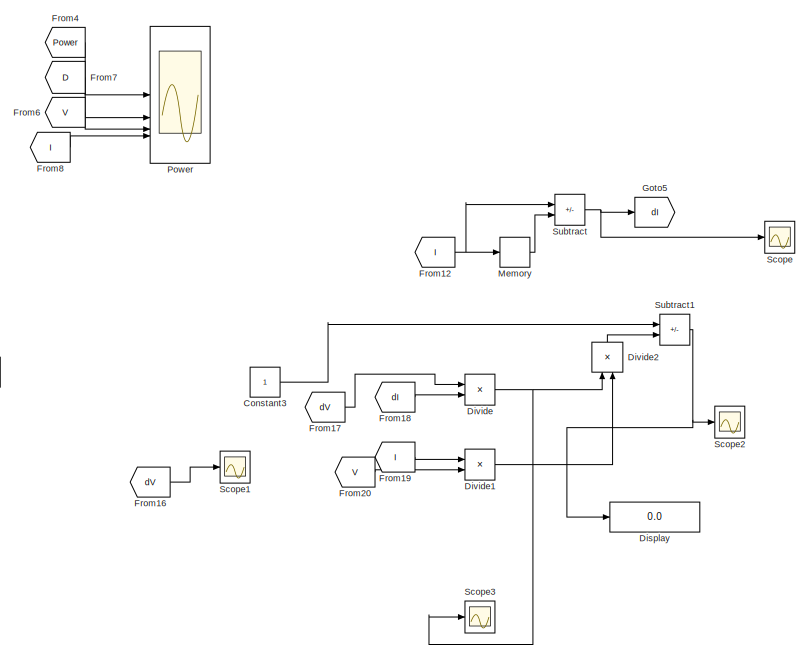
[diagram: root canvas - part 1/5, top right region]
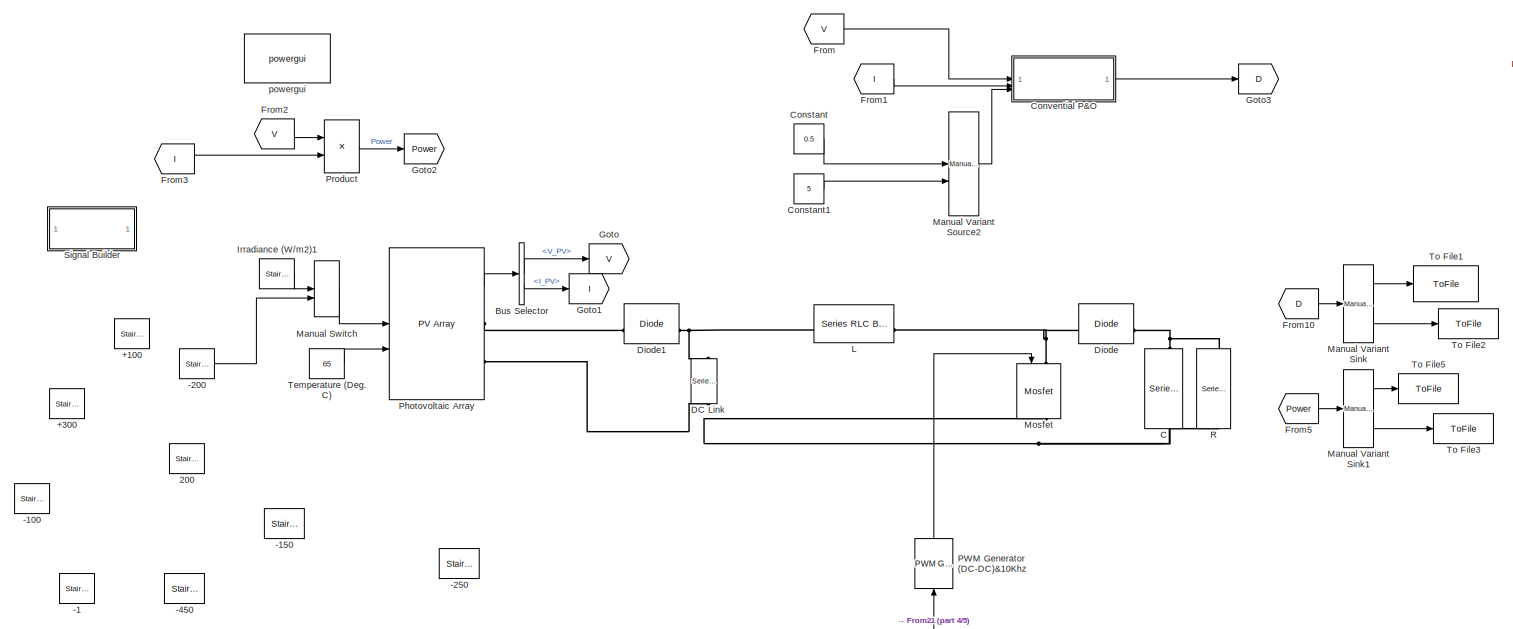
[diagram: root canvas - part 2/5, central region]
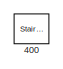
[diagram: root canvas - part 3/5, middle left region]
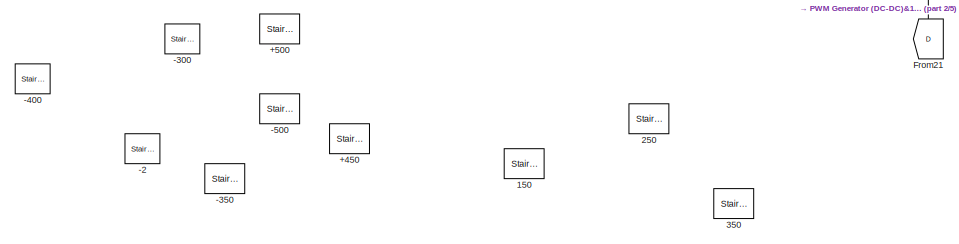
[diagram: root canvas - part 4/5, bottom left region]
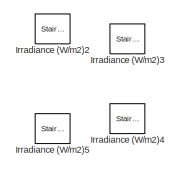
[diagram: root canvas - part 5/5, bottom left region]
MODEL slx_adccf2b5642a
KIND model
CONFIG AbsTol = auto
CONFIG EnableMultiTasking = off
CONFIG FixedStep = auto
CONFIG MaxStep = auto
CONFIG MinStep = auto
CONFIG RelTol = 1e-3
CONFIG SampleTimeConstraint = Unconstrained
CONFIG SolverName = ode23tb
CONFIG StartTime = 0.0
CONFIG StopTime = 1.5
WORKSPACE source: mxarray member
WORKSPACE F: Simulink.Parameter (value not decoded)
BLOCK [Reference] +100  REF=spsStairGeneratorLib/Stair
Generator
  LibrarySourceBlock = sps_lib/Sources/Signal Generator Sources/Stair\nGenerator
  NameLocation = top
  SourceBlock = spsStairGeneratorLib/Stair\nGenerator
  SourceType = Stair Generator
BLOCK [Reference] +300  REF=spsStairGeneratorLib/Stair
Generator
  LibrarySourceBlock = sps_lib/Sources/Signal Generator Sources/Stair\nGenerator
  NameLocation = top
  SourceBlock = spsStairGeneratorLib/Stair\nGenerator
  SourceType = Stair Generator
BLOCK [Reference] +450  REF=spsStairGeneratorLib/Stair
Generator
  LibrarySourceBlock = sps_lib/Sources/Signal Generator Sources/Stair\nGenerator
  NameLocation = top
  SourceBlock = spsStairGeneratorLib/Stair\nGenerator
  SourceType = Stair Generator
BLOCK [Reference] +500  REF=spsStairGeneratorLib/Stair
Generator
  LibrarySourceBlock = sps_lib/Sources/Signal Generator Sources/Stair\nGenerator
  NameLocation = top
  SourceBlock = spsStairGeneratorLib/Stair\nGenerator
  SourceType = Stair Generator
BLOCK [Reference] -1  REF=spsStairGeneratorLib/Stair
Generator
  Commented = on
  LibrarySourceBlock = sps_lib/Sources/Signal Generator Sources/Stair\nGenerator
  NameLocation = top
  SourceBlock = spsStairGeneratorLib/Stair\nGenerator
  SourceType = Stair Generator
BLOCK [Reference] -100  REF=spsStairGeneratorLib/Stair
Generator
  LibrarySourceBlock = sps_lib/Sources/Signal Generator Sources/Stair\nGenerator
  NameLocation = top
  SourceBlock = spsStairGeneratorLib/Stair\nGenerator
  SourceType = Stair Generator
BLOCK [Reference] -150  REF=spsStairGeneratorLib/Stair
Generator
  LibrarySourceBlock = sps_lib/Sources/Signal Generator Sources/Stair\nGenerator
  NameLocation = top
  SourceBlock = spsStairGeneratorLib/Stair\nGenerator
  SourceType = Stair Generator
BLOCK [Reference] -2  REF=spsStairGeneratorLib/Stair
Generator
  Commented = on
  LibrarySourceBlock = sps_lib/Sources/Signal Generator Sources/Stair\nGenerator
  NameLocation = top
  SourceBlock = spsStairGeneratorLib/Stair\nGenerator
  SourceType = Stair Generator
BLOCK [Reference] -200  REF=spsStairGeneratorLib/Stair
Generator
  LibrarySourceBlock = sps_lib/Sources/Signal Generator Sources/Stair\nGenerator
  NameLocation = top
  SourceBlock = spsStairGeneratorLib/Stair\nGenerator
  SourceType = Stair Generator
BLOCK [Reference] -250  REF=spsStairGeneratorLib/Stair
Generator
  LibrarySourceBlock = sps_lib/Sources/Signal Generator Sources/Stair\nGenerator
  NameLocation = top
  SourceBlock = spsStairGeneratorLib/Stair\nGenerator
  SourceType = Stair Generator
BLOCK [Reference] -300  REF=spsStairGeneratorLib/Stair
Generator
  LibrarySourceBlock = sps_lib/Sources/Signal Generator Sources/Stair\nGenerator
  NameLocation = top
  SourceBlock = spsStairGeneratorLib/Stair\nGenerator
  SourceType = Stair Generator
BLOCK [Reference] -350  REF=spsStairGeneratorLib/Stair
Generator
  LibrarySourceBlock = sps_lib/Sources/Signal Generator Sources/Stair\nGenerator
  NameLocation = top
  SourceBlock = spsStairGeneratorLib/Stair\nGenerator
  SourceType = Stair Generator
BLOCK [Reference] -400  REF=spsStairGeneratorLib/Stair
Generator
  LibrarySourceBlock = sps_lib/Sources/Signal Generator Sources/Stair\nGenerator
  NameLocation = top
  SourceBlock = spsStairGeneratorLib/Stair\nGenerator
  SourceType = Stair Generator
BLOCK [Reference] -450  REF=spsStairGeneratorLib/Stair
Generator
  LibrarySourceBlock = sps_lib/Sources/Signal Generator Sources/Stair\nGenerator
  NameLocation = top
  SourceBlock = spsStairGeneratorLib/Stair\nGenerator
  SourceType = Stair Generator
BLOCK [Reference] -500  REF=spsStairGeneratorLib/Stair
Generator
  LibrarySourceBlock = sps_lib/Sources/Signal Generator Sources/Stair\nGenerator
  NameLocation = top
  SourceBlock = spsStairGeneratorLib/Stair\nGenerator
  SourceType = Stair Generator
BLOCK [Reference] 150  REF=spsStairGeneratorLib/Stair
Generator
  LibrarySourceBlock = sps_lib/Sources/Signal Generator Sources/Stair\nGenerator
  NameLocation = top
  SourceBlock = spsStairGeneratorLib/Stair\nGenerator
  SourceType = Stair Generator
BLOCK [Reference] 200  REF=spsStairGeneratorLib/Stair
Generator
  LibrarySourceBlock = sps_lib/Sources/Signal Generator Sources/Stair\nGenerator
  NameLocation = top
  SourceBlock = spsStairGeneratorLib/Stair\nGenerator
  SourceType = Stair Generator
BLOCK [Reference] 250  REF=spsStairGeneratorLib/Stair
Generator
  LibrarySourceBlock = sps_lib/Sources/Signal Generator Sources/Stair\nGenerator
  NameLocation = top
  SourceBlock = spsStairGeneratorLib/Stair\nGenerator
  SourceType = Stair Generator
BLOCK [Reference] 350  REF=spsStairGeneratorLib/Stair
Generator
  LibrarySourceBlock = sps_lib/Sources/Signal Generator Sources/Stair\nGenerator
  NameLocation = top
  SourceBlock = spsStairGeneratorLib/Stair\nGenerator
  SourceType = Stair Generator
BLOCK [Reference] 400  REF=spsStairGeneratorLib/Stair
Generator
  LibrarySourceBlock = sps_lib/Sources/Signal Generator Sources/Stair\nGenerator
  NameLocation = top
  SourceBlock = spsStairGeneratorLib/Stair\nGenerator
  SourceType = Stair Generator
BLOCK [BusSelector] Bus Selector
  OutputSignals = V_PV,I_PV
BLOCK [Reference] C  REF=spsSeriesRLCBranchLib/Series RLC Branch
  LibrarySourceBlock = sps_lib/Passives/Series RLC Branch
  NameLocation = left
  SourceBlock = spsSeriesRLCBranchLib/Series RLC Branch
  SourceType = Series RLC Branch
BLOCK [Constant] Constant
  Value = 0.5
BLOCK [Constant] Constant1
  Value = 5
BLOCK [Constant] Constant3
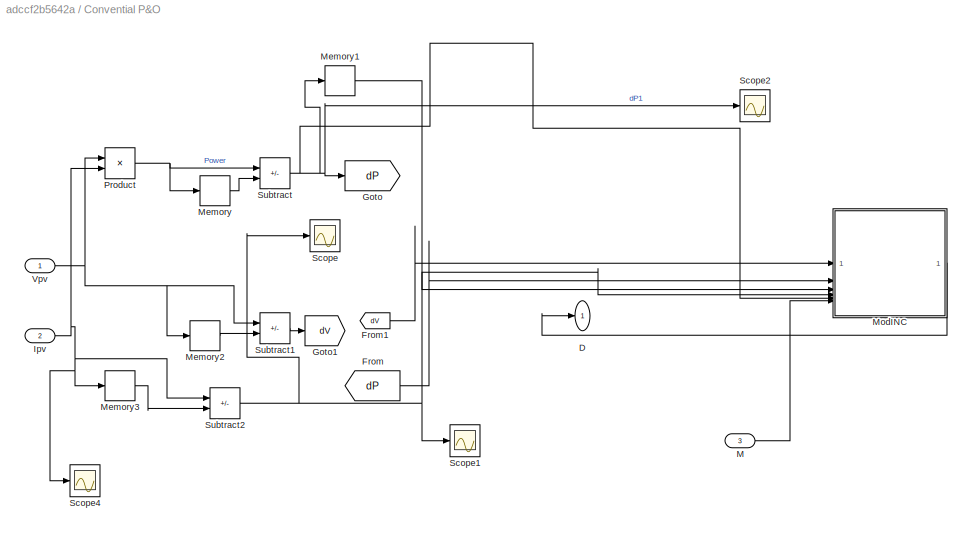
BLOCK [SubSystem] Convential P&O
BLOCK [Outport] Convential P&O/D
  NameLocation = top
  VectorParamsAs1DForOutWhenUnconnected = off
BLOCK [From] Convential P&O/From
  GotoTag = dP
  TagVisibility = global
BLOCK [From] Convential P&O/From1
  GotoTag = dV
  TagVisibility = global
BLOCK [Goto] Convential P&O/Goto
  GotoTag = dP
  TagVisibility = global
BLOCK [Goto] Convential P&O/Goto1
  GotoTag = dV
  TagVisibility = global
BLOCK [Inport] Convential P&O/Ipv
  Port = 2
BLOCK [Inport] Convential P&O/M
  Port = 3
BLOCK [Memory] Convential P&O/Memory
BLOCK [Memory] Convential P&O/Memory1
  InitialCondition = 1
BLOCK [Memory] Convential P&O/Memory2
BLOCK [Memory] Convential P&O/Memory3
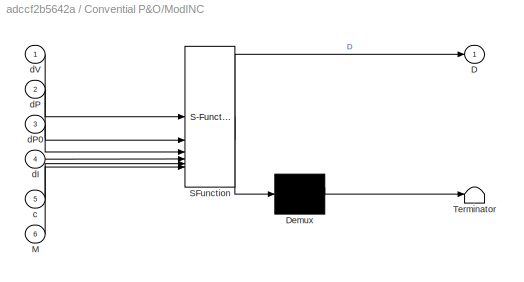
BLOCK [SubSystem] Convential P&O/ModINC
  ErrorFcn = Stateflow.Translate.translate
  PermitHierarchicalResolution = ExplicitOnly
  SFBlockType = MATLAB Function
  TreatAsAtomicUnit = on
BLOCK [Demux] Convential P&O/ModINC/ Demux 
  Outputs = 1
BLOCK [S-Function] Convential P&O/ModINC/ SFunction 
  EnableBusSupport = on
  FunctionName = sf_sfun
  PortCounts = [6 2]
  SFcnIsStateOwnerBlock = off
  SFunctionDeploymentMode = off
  Tag = Stateflow S-Function 1
BLOCK [Terminator] Convential P&O/ModINC/ Terminator 
BLOCK [Outport] Convential P&O/ModINC/D
  VectorParamsAs1DForOutWhenUnconnected = off
BLOCK [Inport] Convential P&O/ModINC/M
  Port = 6
BLOCK [Inport] Convential P&O/ModINC/c
  Port = 5
BLOCK [Inport] Convential P&O/ModINC/dI
  Port = 4
BLOCK [Inport] Convential P&O/ModINC/dP
  Port = 2
BLOCK [Inport] Convential P&O/ModINC/dP0
  Port = 3
BLOCK [Inport] Convential P&O/ModINC/dV
BLOCK [Product] Convential P&O/Product
BLOCK [Scope] Convential P&O/Scope
  Floating = off
  NumInputPorts = 1
  ScopeSpecificationString = Simulink.scopes.TimeScopeBlockCfg('CurrentConfiguration', extmgr.ConfigurationSet(extmgr.Configuration('Core','General UI',true),extmgr.Configuration('Core','Source UI',true),extmgr.Configuration('Sources','WiredSimulink',true,'DataLoggingVariableName','ScopeData2'),extmgr.Configuration('Visuals','Time Domain',true,'SerializedDisplays',{struct('MinYLimReal','-5.58471','MaxYLimReal','26.85591','YLa...<+1372ch>
BLOCK [Scope] Convential P&O/Scope1
  Floating = off
  NumInputPorts = 1
  ScopeSpecificationString = Simulink.scopes.TimeScopeBlockCfg('CurrentConfiguration', extmgr.ConfigurationSet(extmgr.Configuration('Core','General UI',true),extmgr.Configuration('Core','Source UI',true),extmgr.Configuration('Sources','WiredSimulink',true,'DataLoggingVariableName','ScopeData3'),extmgr.Configuration('Visuals','Time Domain',true,'SerializedDisplays',{struct('MinYLimReal','-5.58471','MaxYLimReal','26.85591','YLa...<+1416ch>
BLOCK [Scope] Convential P&O/Scope2
  Floating = off
  NumInputPorts = 1
  ScopeSpecificationString = Simulink.scopes.TimeScopeBlockCfg('CurrentConfiguration', extmgr.ConfigurationSet(extmgr.Configuration('Core','General UI',true),extmgr.Configuration('Core','Source UI',true),extmgr.Configuration('Sources','WiredSimulink',true,'DataLoggingVariableName','ScopeData2'),extmgr.Configuration('Visuals','Time Domain',true,'SerializedDisplays',{struct('MinYLimReal','-934.92544','MaxYLimReal','3907.22589',...<+1453ch>
BLOCK [Scope] Convential P&O/Scope4
  Floating = off
  NumInputPorts = 1
  ScopeSpecificationString = Simulink.scopes.TimeScopeBlockCfg('CurrentConfiguration', extmgr.ConfigurationSet(extmgr.Configuration('Core','General UI',true),extmgr.Configuration('Core','Source UI',true),extmgr.Configuration('Sources','WiredSimulink',true,'DataLoggingVariableName','ScopeData1'),extmgr.Configuration('Visuals','Time Domain',true,'SerializedDisplays',{struct('MinYLimReal','12.93797','MaxYLimReal','40.27707','YLa...<+1412ch>
BLOCK [Sum] Convential P&O/Subtract
  IconShape = rectangular
  Inputs = +-
BLOCK [Sum] Convential P&O/Subtract1
  IconShape = rectangular
  Inputs = +-
BLOCK [Sum] Convential P&O/Subtract2
  IconShape = rectangular
  Inputs = +-
BLOCK [Inport] Convential P&O/Vpv
BLOCK [Reference] DC Link  REF=spsSeriesRLCBranchLib/Series RLC Branch
  AttributesFormatString = \n
  LibrarySourceBlock = sps_lib/Passives/Series RLC Branch
  NameLocation = left
  SourceBlock = spsSeriesRLCBranchLib/Series RLC Branch
  SourceType = Series RLC Branch
BLOCK [Reference] Diode  REF=spsDiodeLib/Diode
  LibrarySourceBlock = sps_lib/Power Electronics/Diode
  SourceBlock = spsDiodeLib/Diode
  SourceType = Diode
BLOCK [Reference] Diode1  REF=spsDiodeLib/Diode
  LibrarySourceBlock = sps_lib/Power Electronics/Diode
  SourceBlock = spsDiodeLib/Diode
  SourceType = Diode
BLOCK [Display] Display
  Decimation = 1
BLOCK [Product] Divide
  Inputs = */
BLOCK [Product] Divide1
  Inputs = */
BLOCK [Product] Divide2
  Inputs = */
  NameLocation = right
BLOCK [From] From
  GotoTag = V
BLOCK [From] From1
  GotoTag = I
BLOCK [From] From10
  GotoTag = D
BLOCK [From] From12
  GotoTag = I
BLOCK [From] From16
  GotoTag = dV
  TagVisibility = global
BLOCK [From] From17
  GotoTag = dV
  TagVisibility = global
BLOCK [From] From18
  GotoTag = dI
BLOCK [From] From19
  GotoTag = I
BLOCK [From] From2
  GotoTag = V
BLOCK [From] From20
  GotoTag = V
BLOCK [From] From21
  GotoTag = D
  NameLocation = right
BLOCK [From] From3
  GotoTag = I
BLOCK [From] From4
  GotoTag = Power
BLOCK [From] From5
  GotoTag = Power
BLOCK [From] From6
  GotoTag = V
BLOCK [From] From7
  GotoTag = D
BLOCK [From] From8
  GotoTag = I
BLOCK [Goto] Goto
  GotoTag = V
BLOCK [Goto] Goto1
  GotoTag = I
BLOCK [Goto] Goto2
  GotoTag = Power
BLOCK [Goto] Goto3
  GotoTag = D
BLOCK [Goto] Goto5
  GotoTag = dI
BLOCK [Reference] Irradiance (W//m2)1  REF=spsStairGeneratorLib/Stair
Generator
  LibrarySourceBlock = sps_lib/Sources/Signal Generator Sources/Stair\nGenerator
  NameLocation = top
  SourceBlock = spsStairGeneratorLib/Stair\nGenerator
  SourceType = Stair Generator
BLOCK [Reference] Irradiance (W//m2)2  REF=spsStairGeneratorLib/Stair
Generator
  Commented = on
  LibrarySourceBlock = sps_lib/Sources/Signal Generator Sources/Stair\nGenerator
  NameLocation = top
  SourceBlock = spsStairGeneratorLib/Stair\nGenerator
  SourceType = Stair Generator
BLOCK [Reference] Irradiance (W//m2)3  REF=spsStairGeneratorLib/Stair
Generator
  Commented = on
  LibrarySourceBlock = sps_lib/Sources/Signal Generator Sources/Stair\nGenerator
  NameLocation = top
  SourceBlock = spsStairGeneratorLib/Stair\nGenerator
  SourceType = Stair Generator
BLOCK [Reference] Irradiance (W//m2)4  REF=spsStairGeneratorLib/Stair
Generator
  Commented = on
  LibrarySourceBlock = sps_lib/Sources/Signal Generator Sources/Stair\nGenerator
  NameLocation = top
  SourceBlock = spsStairGeneratorLib/Stair\nGenerator
  SourceType = Stair Generator
BLOCK [Reference] Irradiance (W//m2)5  REF=spsStairGeneratorLib/Stair
Generator
  Commented = on
  LibrarySourceBlock = sps_lib/Sources/Signal Generator Sources/Stair\nGenerator
  NameLocation = top
  SourceBlock = spsStairGeneratorLib/Stair\nGenerator
  SourceType = Stair Generator
BLOCK [Reference] L  REF=spsSeriesRLCBranchLib/Series RLC Branch
  LibrarySourceBlock = sps_lib/Passives/Series RLC Branch
  SourceBlock = spsSeriesRLCBranchLib/Series RLC Branch
  SourceType = Series RLC Branch
BLOCK [ManualSwitch] Manual Switch
  CurrentSetting = 0
BLOCK [Reference] Manual Variant Sink  REF=simulink/Signal
Routing/Manual
Variant Sink
  SourceBlock = simulink/Signal\nRouting/Manual\nVariant Sink
  SourceType = ManualVariantSink
BLOCK [Reference] Manual Variant Sink1  REF=simulink/Signal
Routing/Manual
Variant Sink
  SourceBlock = simulink/Signal\nRouting/Manual\nVariant Sink
  SourceType = ManualVariantSink
BLOCK [Reference] Manual Variant Source2  REF=simulink/Signal
Routing/Manual
Variant Source
  SourceBlock = simulink/Signal\nRouting/Manual\nVariant Source
  SourceType = ManualVariantSource
BLOCK [Memory] Memory
BLOCK [Reference] Mosfet  REF=spsMosfetLib/Mosfet
  LibrarySourceBlock = sps_lib/Power Electronics/Mosfet
  NameLocation = left
  SourceBlock = spsMosfetLib/Mosfet
  SourceType = Mosfet
BLOCK [Reference] PWM Generator (DC-DC)&10Khz  REF=spsPWMGeneratorDCDCLib/PWM Generator
(DC-DC)
  LibrarySourceBlock = sps_lib/Power Electronics/Power Electronics Control/PWM Generator\n(DC-DC)
  NameLocation = right
  SourceBlock = spsPWMGeneratorDCDCLib/PWM Generator\n(DC-DC)
  SourceType = PWM Generator (DC-DC)
BLOCK [Reference] Photovoltaic Array  REF=spsPVArrayLib/PV Array
  AttributesFormatString = %<ModuleName>\n%<Nser>-module string\n%<Npar> parallel strings
  LibrarySourceBlock = sps_lib/Sources/PV Array
  SourceBlock = spsPVArrayLib/PV Array
  SourceType = PV array
BLOCK [Scope] Power
  Floating = off
  NumInputPorts = 4
  ScopeSpecificationString = Simulink.scopes.TimeScopeBlockCfg('CurrentConfiguration', extmgr.ConfigurationSet(extmgr.Configuration('Core','General UI',true,'FigureColor',[0.156862745098039 0.156862745098039 0.156862745098039]),extmgr.Configuration('Core','Source UI',true),extmgr.Configuration('Sources','WiredSimulink',true,'DataLogging',true,'DataLoggingVariableName','pm','SampleTime','0','DataLoggingSaveFormat','StructureWi...<+4868ch>
BLOCK [Product] Product
  RndMeth = Zero
BLOCK [Reference] R  REF=spsSeriesRLCLoadLib/Series RLC Load
  AttributesFormatString = \n
  LibrarySourceBlock = sps_lib/Passives/Series RLC Load
  NameLocation = left
  SourceBlock = spsSeriesRLCLoadLib/Series RLC Load
  SourceType = Series RLC Load
BLOCK [Scope] Scope
  Floating = off
  NumInputPorts = 1
  ScopeSpecificationString = Simulink.scopes.TimeScopeBlockCfg('CurrentConfiguration', extmgr.ConfigurationSet(extmgr.Configuration('Core','General UI',true),extmgr.Configuration('Core','Source UI',true),extmgr.Configuration('Sources','WiredSimulink',true,'DataLoggingVariableName','ScopeData3'),extmgr.Configuration('Visuals','Time Domain',true,'SerializedDisplays',{struct('MinYLimReal','-2.95265','MaxYLimReal','26.56346','YLa...<+1415ch>
BLOCK [Scope] Scope1
  Floating = off
  NumInputPorts = 1
  ScopeSpecificationString = Simulink.scopes.TimeScopeBlockCfg('CurrentConfiguration', extmgr.ConfigurationSet(extmgr.Configuration('Core','General UI',true),extmgr.Configuration('Core','Source UI',true),extmgr.Configuration('Sources','WiredSimulink',true,'DataLoggingVariableName','ScopeData1'),extmgr.Configuration('Visuals','Time Domain',true,'SerializedDisplays',{struct('MinYLimReal','-0.1751','MaxYLimReal','0.92583','YLabe...<+1366ch>
BLOCK [Scope] Scope2
  Floating = off
  NumInputPorts = 1
  ScopeSpecificationString = Simulink.scopes.TimeScopeBlockCfg('CurrentConfiguration', extmgr.ConfigurationSet(extmgr.Configuration('Core','General UI',true),extmgr.Configuration('Core','Source UI',true),extmgr.Configuration('Sources','WiredSimulink',true,'DataLoggingVariableName','ScopeData2'),extmgr.Configuration('Visuals','Time Domain',true,'SerializedDisplays',{struct('MinYLimReal','-3718.79764','MaxYLimReal','3191.15617'...<+1409ch>
BLOCK [Scope] Scope3
  Floating = off
  NumInputPorts = 1
  ScopeSpecificationString = Simulink.scopes.TimeScopeBlockCfg('CurrentConfiguration', extmgr.ConfigurationSet(extmgr.Configuration('Core','General UI',true),extmgr.Configuration('Core','Source UI',true),extmgr.Configuration('Sources','WiredSimulink',true,'DataLoggingVariableName','ScopeData1'),extmgr.Configuration('Visuals','Time Domain',true,'SerializedDisplays',{struct('MinYLimReal','-1277.88135','MaxYLimReal','1253.10015'...<+1406ch>
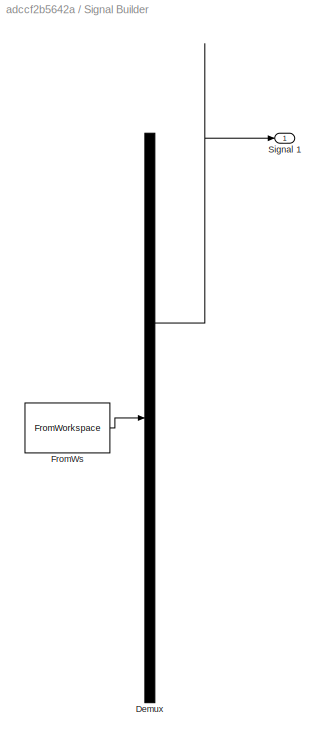
BLOCK [SubSystem] Signal Builder
  ClipboardFcn = sigbuilder_block('clipboard');
  CloseFcn = sigbuilder_block('close');
  ContinueFcn = sigbuilder_block('continue');
  CopyFcn = sigbuilder_block('copy');
  DeleteFcn = sigbuilder_block('delete');
  LoadFcn = sigbuilder_block('load');
  MaskHideContents = on
  ModelCloseFcn = sigbuilder_block('modelClose');
  NameChangeFcn = sigbuilder_block('namechange');
  OpenFcn = sigbuilder_block('open',[437.6 199.2 550.4 400 ]);
  PauseFcn = sigbuilder_block('pause');
  PreSaveFcn = sigbuilder_block('preSave');
  StartFcn = sigbuilder_block('start');
  StopFcn = sigbuilder_block('stop');
  Tag = STV Subsys
BLOCK [Demux] Signal Builder/Demux
  DisplayOption = none
  Outputs = 1
  Tag = STV Demux
BLOCK [FromWorkspace] Signal Builder/FromWs
  Tag = STV FromWs
  VariableName = tuvar
BLOCK [Outport] Signal Builder/Signal 1
  Tag = STV Outport
  VectorParamsAs1DForOutWhenUnconnected = off
BLOCK [Sum] Subtract
  IconShape = rectangular
  Inputs = +-
BLOCK [Sum] Subtract1
  IconShape = rectangular
  Inputs = +-
BLOCK [Constant] Temperature (Deg. C)
  Value = 65
BLOCK [ToFile] To File1
  Filename = Convential_D.mat
  MatrixName = Convential_D
  SaveFormat = Timeseries
BLOCK [ToFile] To File2
  Filename = Adaptive_D.mat
  MatrixName = Adaptive_D
  SaveFormat = Timeseries
BLOCK [ToFile] To File3
  Filename = Adaptive.mat
  MatrixName = Adaptive
  SaveFormat = Timeseries
BLOCK [ToFile] To File5
  Filename = Convential.mat
  MatrixName = Convential
  SaveFormat = Timeseries
BLOCK [Reference] powergui  REF=sps_lib/powergui
  LibrarySourceBlock = sps_lib/powergui
  Priority = 1
  SourceBlock = sps_lib/powergui
  SourceType = PSB option menu block
LINE -200:1 -> Manual Switch:2
LINE Bus Selector:1 -> Goto:1
LINE Bus Selector:2 -> Goto1:1
LINE Constant1:1 -> Manual Variant Source2:2
LINE Constant3:1 -> Subtract1:1
LINE Constant:1 -> Manual Variant Source2:1
LINE Convential P&O/From1:1 -> Convential P&O/ModINC:1
LINE Convential P&O/From:1 -> Convential P&O/ModINC:2
NET Convential P&O/Ipv:1 -> Convential P&O/Memory3:1, Convential P&O/Product:2, Convential P&O/Scope4:1, Convential P&O/Subtract2:1
LINE Convential P&O/M:1 -> Convential P&O/ModINC:6
LINE Convential P&O/Memory1:1 -> Convential P&O/ModINC:3
LINE Convential P&O/Memory2:1 -> Convential P&O/Subtract1:2
LINE Convential P&O/Memory3:1 -> Convential P&O/Subtract2:2
LINE Convential P&O/Memory:1 -> Convential P&O/Subtract:2
LINE Convential P&O/ModINC:1 -> Convential P&O/D:1
NET Convential P&O/Product:1 -> Convential P&O/Memory:1, Convential P&O/Subtract:1
LINE Convential P&O/Subtract1:1 -> Convential P&O/Goto1:1
NET Convential P&O/Subtract2:1 -> Convential P&O/ModINC:4, Convential P&O/Scope1:1, Convential P&O/Scope:1
NET Convential P&O/Subtract:1 -> Convential P&O/Goto:1, Convential P&O/Memory1:1, Convential P&O/ModINC:5, Convential P&O/Scope2:1
NET Convential P&O/Vpv:1 -> Convential P&O/Memory2:1, Convential P&O/Product:1, Convential P&O/Subtract1:1
LINE Convential P&O:1 -> Goto3:1
LINE Divide1:1 -> Divide2:2
LINE Divide2:1 -> Subtract1:2
NET Divide:1 -> Divide2:1, Scope3:1
LINE From10:1 -> Manual Variant Sink:1
NET From12:1 -> Memory:1, Subtract:1
LINE From16:1 -> Scope1:1
LINE From17:1 -> Divide:1
LINE From18:1 -> Divide:2
LINE From19:1 -> Divide1:1
LINE From1:1 -> Convential P&O:2
LINE From20:1 -> Divide1:2
LINE From21:1 -> PWM Generator (DC-DC)&10Khz:1
LINE From2:1 -> Product:1
LINE From3:1 -> Product:2
LINE From4:1 -> Power:1
LINE From5:1 -> Manual Variant Sink1:1
LINE From6:1 -> Power:3
LINE From7:1 -> Power:2
LINE From8:1 -> Power:4
LINE From:1 -> Convential P&O:1
LINE Irradiance (W//m2)1:1 -> Manual Switch:1
LINE Manual Switch:1 -> Photovoltaic Array:1
LINE Manual Variant Sink1:1 -> To File5:1
LINE Manual Variant Sink1:2 -> To File3:1
LINE Manual Variant Sink:1 -> To File1:1
LINE Manual Variant Sink:2 -> To File2:1
LINE Manual Variant Source2:1 -> Convential P&O:3
LINE Memory:1 -> Subtract:2
LINE PWM Generator (DC-DC)&10Khz:1 -> Mosfet:1
LINE Photovoltaic Array:1 -> Bus Selector:1
LINE Product:1 -> Goto2:1
NET Subtract1:1 -> Display:1, Scope2:1
NET Subtract:1 -> Goto5:1, Scope:1
LINE Temperature (Deg. C):1 -> Photovoltaic Array:2
PNET net1: C:LConn1 -- Diode:RConn1 -- R:LConn1
PNET net2: C:RConn1 -- DC Link:RConn1 -- Mosfet:RConn1 -- Photovoltaic Array:RConn2 -- R:RConn1
PNET net3: DC Link:LConn1 -- Diode1:RConn1 -- L:LConn1
PLINE Diode1:LConn1 -- Photovoltaic Array:RConn1
PNET net4: Diode:LConn1 -- L:RConn1 -- Mosfet:LConn1
note: NET lines group one-source signal fan-out (src -> all destinations, sorted); 1:1 wires keep LINE; PNET lines group multi-terminal physical nets as a canonical sorted terminal list (undirected conserving connections); 2-terminal nets keep the pairwise PLINE form
CHART Convential P&O/ModINC states=1 transitions=1
  STATE_LABEL 'eML_blk_kernel()'
  STATE_LABEL "SCRIPT:\n\nfunction D =ModINC(dV,dP,dP0,dI,c,M)\n\n\nDinit = 0.6;  %Initial value for D output\nDmax = 0.65;   %Maximum value for D\nDmin = 0;   %Minimum value for D\n    deltaD = 0.0005;\n   \n\npersistent   Dold  ;\n\n\ndataType = 'double';\n\nif isempty(Dold)\n\n    Dold=Dinit;\nend\n  \nif dP == 0\n                    D=Dold;\nelse\n       if dP >0        \n                        if dV>0\n            D=Dold - M*deltaD...<+352ch>"
CHART  states=0 transitions=0
